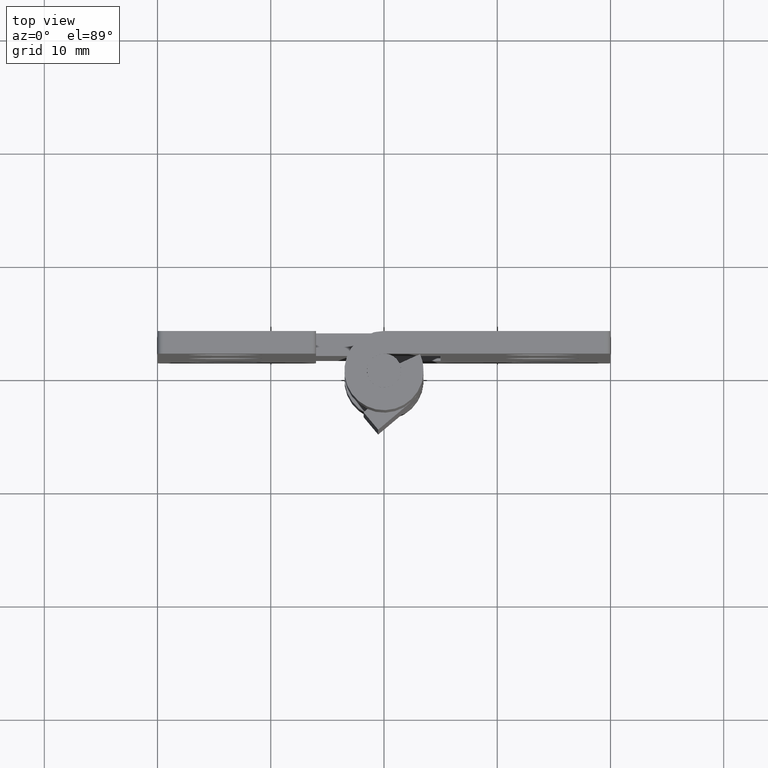
[diagram: clean part render]
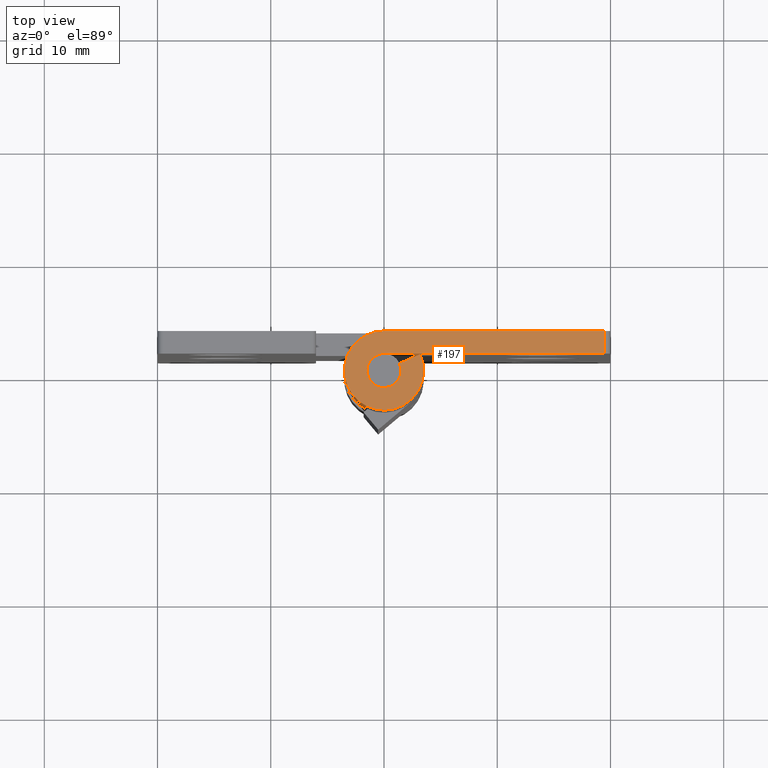
[diagram: same view with one face highlighted and labeled with its STEP entity id]
A machine part, top view. The second image highlights one B-rep face of the part: STEP entity #197.
In plain terms, the highlighted planar face has unit normal (0, 0, 1).
Its self-contained STEP definition (entity closure, byte-faithful):
#197=ADVANCED_FACE('',(#704),#703,.T.);
#703=PLANE('',#1218);
#704=FACE_OUTER_BOUND('',#1219,.T.);
#1215=CARTESIAN_POINT('',(-6.39128021246E+00,-5.29267099757E+00,5.00000000000E+01));
#1216=DIRECTION('',(0.00000000000E+00,0.00000000000E+00,1.00000000000E+00));
#1217=DIRECTION('',(1.00000000000E+00,0.00000000000E+00,0.00000000000E+00));
#1218=AXIS2_PLACEMENT_3D('',#1215,#1216,#1217);
#1219=EDGE_LOOP('',(#1603,#1604,#1605,#1606,#1607,#1608));
#1603=ORIENTED_EDGE('',*,*,#1800,.F.);
#1604=ORIENTED_EDGE('',*,*,#1839,.T.);
#1605=ORIENTED_EDGE('',*,*,#1785,.F.);
#1606=ORIENTED_EDGE('',*,*,#1854,.F.);
#1607=ORIENTED_EDGE('',*,*,#1855,.F.);
#1608=ORIENTED_EDGE('',*,*,#1856,.T.);
#1785=EDGE_CURVE('',#2615,#2622,#2623,.T.);
#1800=EDGE_CURVE('',#2720,#2727,#2728,.T.);
#1839=EDGE_CURVE('',#2720,#2622,#2993,.T.);
#1854=EDGE_CURVE('',#3089,#2615,#3090,.T.);
#1855=EDGE_CURVE('',#3096,#3089,#3097,.T.);
#1856=EDGE_CURVE('',#3096,#2727,#3103,.T.);
#2615=VERTEX_POINT('',#3631);
#2622=VERTEX_POINT('',#3635);
#2623=LINE('',#3636,#3637);
#2720=VERTEX_POINT('',#3702);
#2727=VERTEX_POINT('',#3707);
#2728=LINE('',#3708,#3709);
#2993=LINE('',#3883,#3884);
#3089=VERTEX_POINT('',#3940);
#3090=CIRCLE('',#3944,3.50000000000E+00);
#3096=VERTEX_POINT('',#3945);
#3097=LINE('',#3946,#3947);
#3103=CIRCLE('',#3952,1.50000000000E+00);
#3631=CARTESIAN_POINT('',(0.00000000000E+00,3.50000000000E+00,5.00000000000E+01));
#3635=CARTESIAN_POINT('',(1.95000000000E+01,3.50000000000E+00,5.00000000000E+01));
#3636=CARTESIAN_POINT('',(0.00000000000E+00,3.50000000000E+00,5.00000000000E+01));
#3637=VECTOR('',#3638,1.95000000000E+01);
#3638=DIRECTION('',(1.00000000000E+00,0.00000000000E+00,0.00000000000E+00));
#3702=CARTESIAN_POINT('',(1.95000000000E+01,1.50000000000E+00,5.00000000000E+01));
#3707=CARTESIAN_POINT('',(0.00000000000E+00,1.50000000000E+00,5.00000000000E+01));
#3708=CARTESIAN_POINT('',(1.95000000000E+01,1.50000000000E+00,5.00000000000E+01));
#3709=VECTOR('',#3710,1.95000000000E+01);
#3710=DIRECTION('',(-1.00000000000E+00,0.00000000000E+00,0.00000000000E+00));
#3883=CARTESIAN_POINT('',(1.95000000000E+01,1.50000000000E+00,5.00000000000E+01));
#3884=VECTOR('',#3885,2.00000000000E+00);
#3885=DIRECTION('',(0.00000000000E+00,1.00000000000E+00,0.00000000000E+00));
#3940=CARTESIAN_POINT('',(3.18551408724E+00,1.45000000000E+00,5.00000000000E+01));
#3941=CARTESIAN_POINT('',(-4.44089209850E-16,0.00000000000E+00,5.00000000000E+01));
#3942=DIRECTION('',(3.50932874138E-16,-7.70966630512E-16,-1.00000000000E+00));
#3943=DIRECTION('',(9.10146882068E-01,4.14285714286E-01,-1.03733875588E-31));
#3944=AXIS2_PLACEMENT_3D('',#3941,#3942,#3943);
#3945=CARTESIAN_POINT('',(1.36522032310E+00,6.21428571429E-01,5.00000000000E+01));
#3946=CARTESIAN_POINT('',(1.36522032310E+00,6.21428571429E-01,5.00000000000E+01));
#3947=VECTOR('',#3948,2.00000000000E+00);
#3948=DIRECTION('',(9.10146882068E-01,4.14285714286E-01,0.00000000000E+00));
#3949=CARTESIAN_POINT('',(-3.33066907388E-16,0.00000000000E+00,5.00000000000E+01));
#3950=DIRECTION('',(8.18843372989E-16,-1.79892213786E-15,-1.00000000000E+00));
#3951=DIRECTION('',(9.10146882068E-01,4.14285714286E-01,-3.40653322857E-31));
#3952=AXIS2_PLACEMENT_3D('',#3949,#3950,#3951);